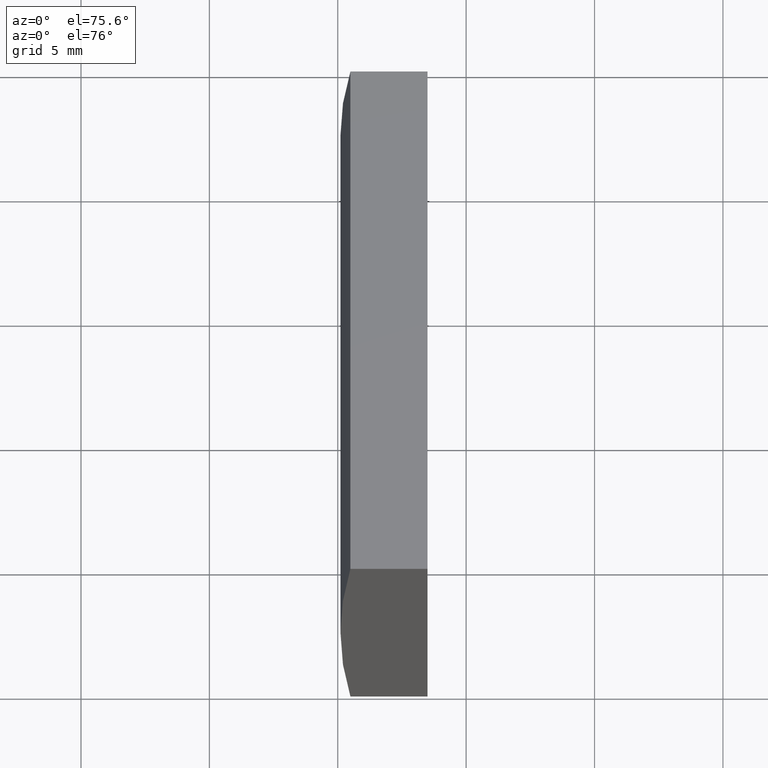
[diagram: clean part render]
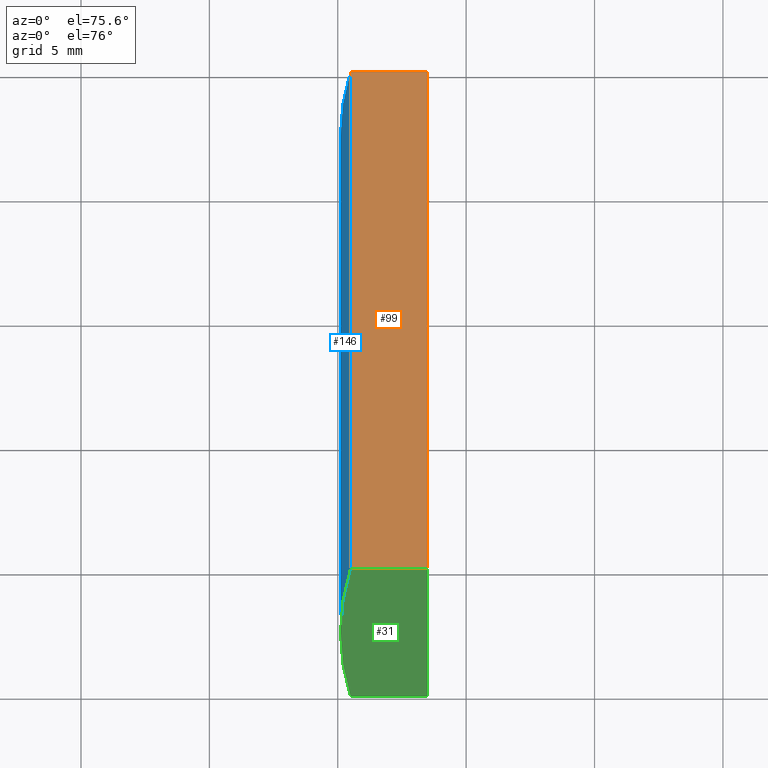
[diagram: same view with three faces highlighted in distinct colors, each labeled with its STEP entity id]
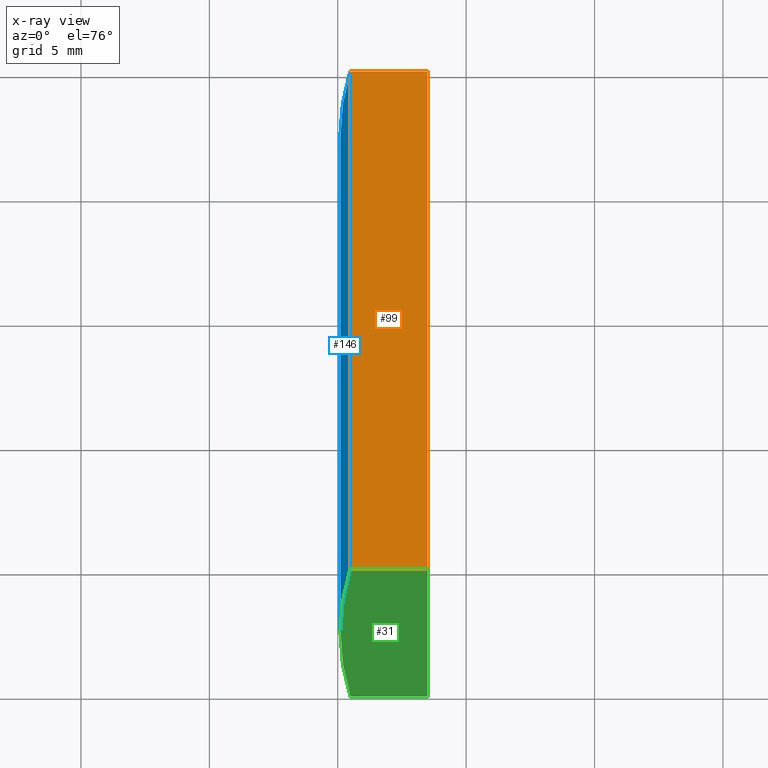
[diagram: x-ray of the same camera — body ghosted, the three highlighted faces saturated]
A machine part, auxiliary view with three faces highlighted in distinct colors.
The next image is the same camera in x-ray (body ghosted, the three faces saturated) — at least one of them is partly hidden behind the body in this view.
Their STEP definitions:

[orange] entity #99 — the highlighted planar face has unit normal (0, 0, -1).
#2 = ORIENTED_EDGE ( 'NONE', *, *, #152, .F. ) ;
#3 = EDGE_LOOP ( 'NONE', ( #9, #2, #160, #189 ) ) ;
#8 = VECTOR ( 'NONE', #92, 1000.000000000000000 ) ;
#9 = ORIENTED_EDGE ( 'NONE', *, *, #134, .T. ) ;
#15 = CARTESIAN_POINT ( 'NONE',  ( -121.5047956651487300, 0.0000000000000000000, 10.00000000000000000 ) ) ;
#27 = CARTESIAN_POINT ( 'NONE',  ( -124.5073678108264800, 20.00000000000000000, 10.00000000000000000 ) ) ;
#28 = VECTOR ( 'NONE', #131, 1000.000000000000000 ) ;
#40 = CARTESIAN_POINT ( 'NONE',  ( -124.5073678108264800, 20.00000000000000000, 10.00000000000000000 ) ) ;
#43 = LINE ( 'NONE', #40, #48 ) ;
#47 = LINE ( 'NONE', #75, #84 ) ;
#48 = VECTOR ( 'NONE', #141, 1000.000000000000000 ) ;
#58 = VERTEX_POINT ( 'NONE', #199 ) ;
#71 = FACE_OUTER_BOUND ( 'NONE', #3, .T. ) ;
#74 = VERTEX_POINT ( 'NONE', #129 ) ;
#75 = CARTESIAN_POINT ( 'NONE',  ( -121.5047956651487300, 20.00000000000000000, 10.00000000000000000 ) ) ;
#76 = LINE ( 'NONE', #139, #28 ) ;
#84 = VECTOR ( 'NONE', #147, 1000.000000000000000 ) ;
#87 = VERTEX_POINT ( 'NONE', #15 ) ;
#92 = DIRECTION ( 'NONE',  ( 1.000000000000000000, 0.0000000000000000000, 0.0000000000000000000 ) ) ;
#99 = ADVANCED_FACE ( 'NONE', ( #71 ), #188, .F. ) ;
#103 = DIRECTION ( 'NONE',  ( -1.000000000000000000, 0.0000000000000000000, -0.0000000000000000000 ) ) ;
#113 = CARTESIAN_POINT ( 'NONE',  ( -124.5073678108264800, 20.00000000000000000, 10.00000000000000000 ) ) ;
#118 = VERTEX_POINT ( 'NONE', #113 ) ;
#129 = CARTESIAN_POINT ( 'NONE',  ( -124.5073678108264800, 0.0000000000000000000, 10.00000000000000000 ) ) ;
#131 = DIRECTION ( 'NONE',  ( 1.000000000000000000, 0.0000000000000000000, 0.0000000000000000000 ) ) ;
#133 = LINE ( 'NONE', #135, #8 ) ;
#134 = EDGE_CURVE ( 'NONE', #74, #87, #133, .T. ) ;
#135 = CARTESIAN_POINT ( 'NONE',  ( -124.5073678108264800, 0.0000000000000000000, 10.00000000000000000 ) ) ;
#139 = CARTESIAN_POINT ( 'NONE',  ( -124.5073678108264800, 20.00000000000000000, 10.00000000000000000 ) ) ;
#141 = DIRECTION ( 'NONE',  ( -0.0000000000000000000, -1.000000000000000000, -0.0000000000000000000 ) ) ;
#142 = EDGE_CURVE ( 'NONE', #118, #58, #76, .T. ) ;
#147 = DIRECTION ( 'NONE',  ( -0.0000000000000000000, -1.000000000000000000, -0.0000000000000000000 ) ) ;
#152 = EDGE_CURVE ( 'NONE', #58, #87, #47, .T. ) ;
#154 = EDGE_CURVE ( 'NONE', #118, #74, #43, .T. ) ;
#160 = ORIENTED_EDGE ( 'NONE', *, *, #142, .F. ) ;
#167 = AXIS2_PLACEMENT_3D ( 'NONE', #27, #181, #103 ) ;
#181 = DIRECTION ( 'NONE',  ( 0.0000000000000000000, 0.0000000000000000000, -1.000000000000000000 ) ) ;
#188 = PLANE ( 'NONE',  #167 ) ;
#189 = ORIENTED_EDGE ( 'NONE', *, *, #154, .T. ) ;
#199 = CARTESIAN_POINT ( 'NONE',  ( -121.5047956651487300, 20.00000000000000000, 10.00000000000000000 ) ) ;

[blue] entity #146 — the highlighted cylindrical surface (partial cylindrical patch) has radius 129.25 mm, axis along (-0, -1, -0).
#11 = DIRECTION ( 'NONE',  ( 0.0000000000000000000, 0.0000000000000000000, 1.000000000000000000 ) ) ;
#12 = ORIENTED_EDGE ( 'NONE', *, *, #51, .F. ) ;
#16 = ORIENTED_EDGE ( 'NONE', *, *, #187, .T. ) ;
#18 = CARTESIAN_POINT ( 'NONE',  ( 4.355204334851265500, 20.00000000000000000, 4.286263797015675000E-017 ) ) ;
#21 = EDGE_LOOP ( 'NONE', ( #33, #35, #12, #16 ) ) ;
#25 = CIRCLE ( 'NONE', #171, 129.2500000000000000 ) ;
#32 = DIRECTION ( 'NONE',  ( -0.0000000000000000000, -1.000000000000000000, -0.0000000000000000000 ) ) ;
#33 = ORIENTED_EDGE ( 'NONE', *, *, #107, .T. ) ;
#34 = AXIS2_PLACEMENT_3D ( 'NONE', #198, #106, #94 ) ;
#35 = ORIENTED_EDGE ( 'NONE', *, *, #154, .F. ) ;
#40 = CARTESIAN_POINT ( 'NONE',  ( -124.5073678108264800, 20.00000000000000000, 10.00000000000000000 ) ) ;
#43 = LINE ( 'NONE', #40, #48 ) ;
#48 = VECTOR ( 'NONE', #141, 1000.000000000000000 ) ;
#50 = DIRECTION ( 'NONE',  ( 0.0000000000000000000, 0.0000000000000000000, -1.000000000000000000 ) ) ;
#51 = EDGE_CURVE ( 'NONE', #130, #118, #110, .T. ) ;
#74 = VERTEX_POINT ( 'NONE', #129 ) ;
#80 = CARTESIAN_POINT ( 'NONE',  ( -124.5073678108264900, 20.00000000000000000, -10.00000000000000000 ) ) ;
#85 = FACE_OUTER_BOUND ( 'NONE', #21, .T. ) ;
#93 = DIRECTION ( 'NONE',  ( 0.0000000000000000000, 1.000000000000000000, 0.0000000000000000000 ) ) ;
#94 = DIRECTION ( 'NONE',  ( 0.0000000000000000000, 0.0000000000000000000, 1.000000000000000000 ) ) ;
#97 = CARTESIAN_POINT ( 'NONE',  ( -124.5073678108264900, 20.00000000000000000, -10.00000000000000000 ) ) ;
#98 = VECTOR ( 'NONE', #32, 1000.000000000000000 ) ;
#106 = DIRECTION ( 'NONE',  ( 0.0000000000000000000, 1.000000000000000000, 0.0000000000000000000 ) ) ;
#107 = EDGE_CURVE ( 'NONE', #149, #74, #25, .T. ) ;
#110 = CIRCLE ( 'NONE', #34, 129.2500000000000000 ) ;
#113 = CARTESIAN_POINT ( 'NONE',  ( -124.5073678108264800, 20.00000000000000000, 10.00000000000000000 ) ) ;
#118 = VERTEX_POINT ( 'NONE', #113 ) ;
#129 = CARTESIAN_POINT ( 'NONE',  ( -124.5073678108264800, 0.0000000000000000000, 10.00000000000000000 ) ) ;
#130 = VERTEX_POINT ( 'NONE', #80 ) ;
#141 = DIRECTION ( 'NONE',  ( -0.0000000000000000000, -1.000000000000000000, -0.0000000000000000000 ) ) ;
#146 = ADVANCED_FACE ( 'NONE', ( #85 ), #156, .T. ) ;
#148 = AXIS2_PLACEMENT_3D ( 'NONE', #18, #169, #50 ) ;
#149 = VERTEX_POINT ( 'NONE', #168 ) ;
#154 = EDGE_CURVE ( 'NONE', #118, #74, #43, .T. ) ;
#156 = CYLINDRICAL_SURFACE ( 'NONE', #148, 129.2500000000000000 ) ;
#168 = CARTESIAN_POINT ( 'NONE',  ( -124.5073678108264900, 0.0000000000000000000, -10.00000000000000000 ) ) ;
#169 = DIRECTION ( 'NONE',  ( -0.0000000000000000000, -1.000000000000000000, -0.0000000000000000000 ) ) ;
#171 = AXIS2_PLACEMENT_3D ( 'NONE', #192, #93, #11 ) ;
#187 = EDGE_CURVE ( 'NONE', #130, #149, #203, .T. ) ;
#192 = CARTESIAN_POINT ( 'NONE',  ( 4.355204334851265500, 0.0000000000000000000, 4.286263797015675000E-017 ) ) ;
#198 = CARTESIAN_POINT ( 'NONE',  ( 4.355204334851265500, 20.00000000000000000, 4.286263797015675000E-017 ) ) ;
#203 = LINE ( 'NONE', #97, #98 ) ;

[green] entity #31 — the highlighted planar face has unit normal (0, 1, 0).
#8 = VECTOR ( 'NONE', #92, 1000.000000000000000 ) ;
#11 = DIRECTION ( 'NONE',  ( 0.0000000000000000000, 0.0000000000000000000, 1.000000000000000000 ) ) ;
#15 = CARTESIAN_POINT ( 'NONE',  ( -121.5047956651487300, 0.0000000000000000000, 10.00000000000000000 ) ) ;
#22 = VECTOR ( 'NONE', #114, 1000.000000000000000 ) ;
#25 = CIRCLE ( 'NONE', #171, 129.2500000000000000 ) ;
#30 = VERTEX_POINT ( 'NONE', #175 ) ;
#31 = ADVANCED_FACE ( 'NONE', ( #182 ), #165, .F. ) ;
#39 = DIRECTION ( 'NONE',  ( -0.0000000000000000000, -0.0000000000000000000, -1.000000000000000000 ) ) ;
#56 = EDGE_LOOP ( 'NONE', ( #186, #91, #78, #105 ) ) ;
#66 = CARTESIAN_POINT ( 'NONE',  ( 4.355204334851265500, 0.0000000000000000000, 4.286263797015675000E-017 ) ) ;
#69 = CARTESIAN_POINT ( 'NONE',  ( -124.5073678108264900, 0.0000000000000000000, -10.00000000000000000 ) ) ;
#74 = VERTEX_POINT ( 'NONE', #129 ) ;
#78 = ORIENTED_EDGE ( 'NONE', *, *, #125, .F. ) ;
#87 = VERTEX_POINT ( 'NONE', #15 ) ;
#88 = AXIS2_PLACEMENT_3D ( 'NONE', #66, #204, #143 ) ;
#90 = LINE ( 'NONE', #174, #195 ) ;
#91 = ORIENTED_EDGE ( 'NONE', *, *, #202, .F. ) ;
#92 = DIRECTION ( 'NONE',  ( 1.000000000000000000, 0.0000000000000000000, 0.0000000000000000000 ) ) ;
#93 = DIRECTION ( 'NONE',  ( 0.0000000000000000000, 1.000000000000000000, 0.0000000000000000000 ) ) ;
#105 = ORIENTED_EDGE ( 'NONE', *, *, #134, .F. ) ;
#107 = EDGE_CURVE ( 'NONE', #149, #74, #25, .T. ) ;
#112 = LINE ( 'NONE', #69, #22 ) ;
#114 = DIRECTION ( 'NONE',  ( -1.000000000000000000, -0.0000000000000000000, 1.155491619726083900E-015 ) ) ;
#125 = EDGE_CURVE ( 'NONE', #87, #30, #90, .T. ) ;
#129 = CARTESIAN_POINT ( 'NONE',  ( -124.5073678108264800, 0.0000000000000000000, 10.00000000000000000 ) ) ;
#133 = LINE ( 'NONE', #135, #8 ) ;
#134 = EDGE_CURVE ( 'NONE', #74, #87, #133, .T. ) ;
#135 = CARTESIAN_POINT ( 'NONE',  ( -124.5073678108264800, 0.0000000000000000000, 10.00000000000000000 ) ) ;
#143 = DIRECTION ( 'NONE',  ( 0.0000000000000000000, -0.0000000000000000000, 1.000000000000000000 ) ) ;
#149 = VERTEX_POINT ( 'NONE', #168 ) ;
#165 = PLANE ( 'NONE',  #88 ) ;
#168 = CARTESIAN_POINT ( 'NONE',  ( -124.5073678108264900, 0.0000000000000000000, -10.00000000000000000 ) ) ;
#171 = AXIS2_PLACEMENT_3D ( 'NONE', #192, #93, #11 ) ;
#174 = CARTESIAN_POINT ( 'NONE',  ( -121.5047956651487300, 0.0000000000000000000, -10.00000000000000400 ) ) ;
#175 = CARTESIAN_POINT ( 'NONE',  ( -121.5047956651487300, 0.0000000000000000000, -10.00000000000000400 ) ) ;
#182 = FACE_OUTER_BOUND ( 'NONE', #56, .T. ) ;
#186 = ORIENTED_EDGE ( 'NONE', *, *, #107, .F. ) ;
#192 = CARTESIAN_POINT ( 'NONE',  ( 4.355204334851265500, 0.0000000000000000000, 4.286263797015675000E-017 ) ) ;
#195 = VECTOR ( 'NONE', #39, 1000.000000000000000 ) ;
#202 = EDGE_CURVE ( 'NONE', #30, #149, #112, .T. ) ;
#204 = DIRECTION ( 'NONE',  ( 0.0000000000000000000, 1.000000000000000000, 0.0000000000000000000 ) ) ;